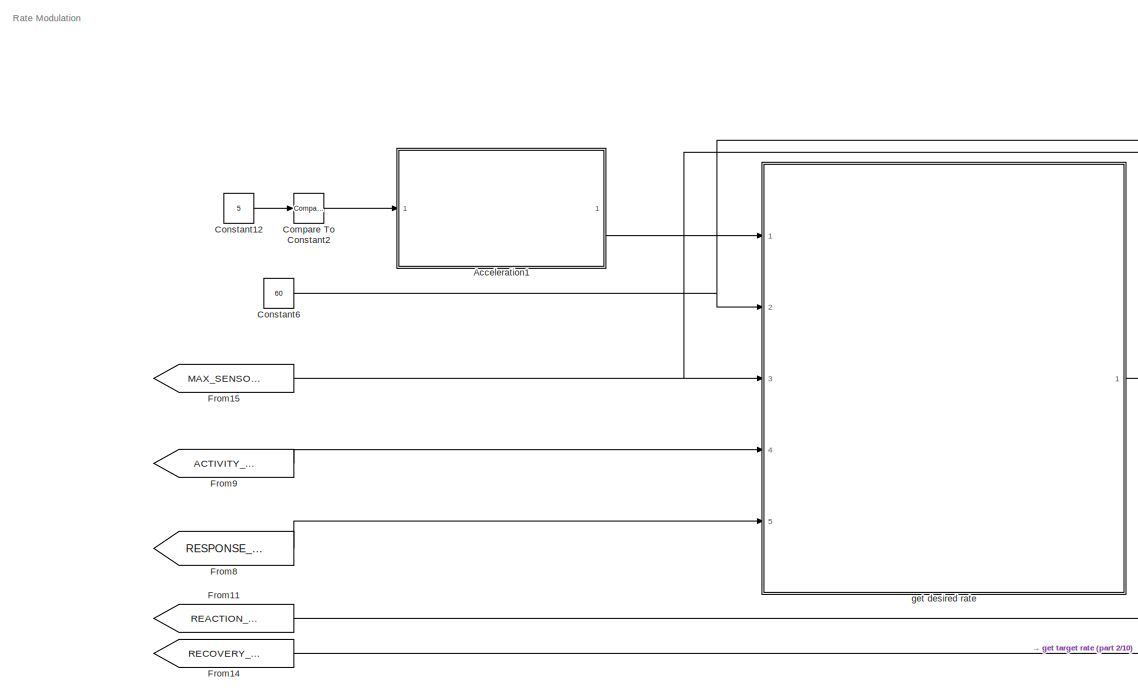
[diagram: root canvas - part 1/10, top center region]
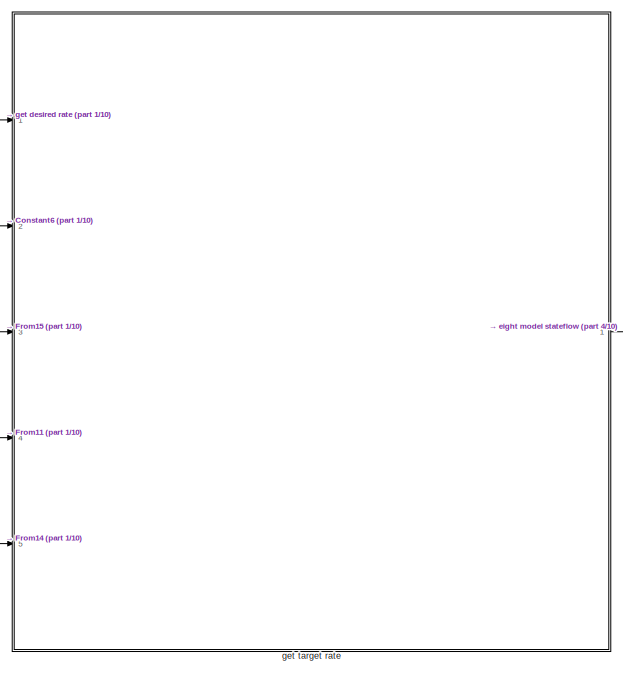
[diagram: root canvas - part 2/10, top center region]
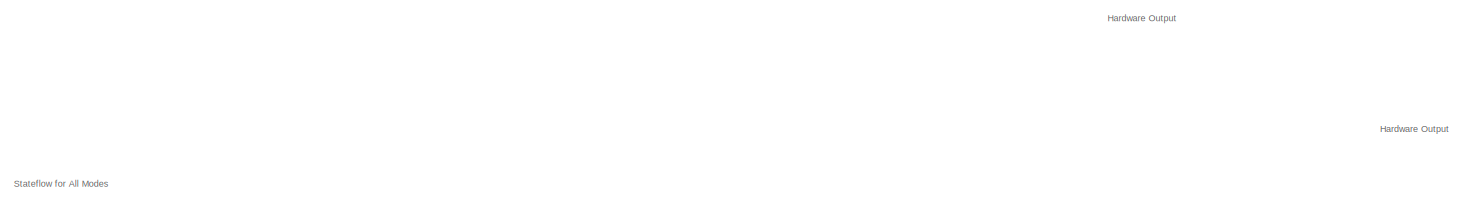
[diagram: root canvas - part 3/10, middle right region]
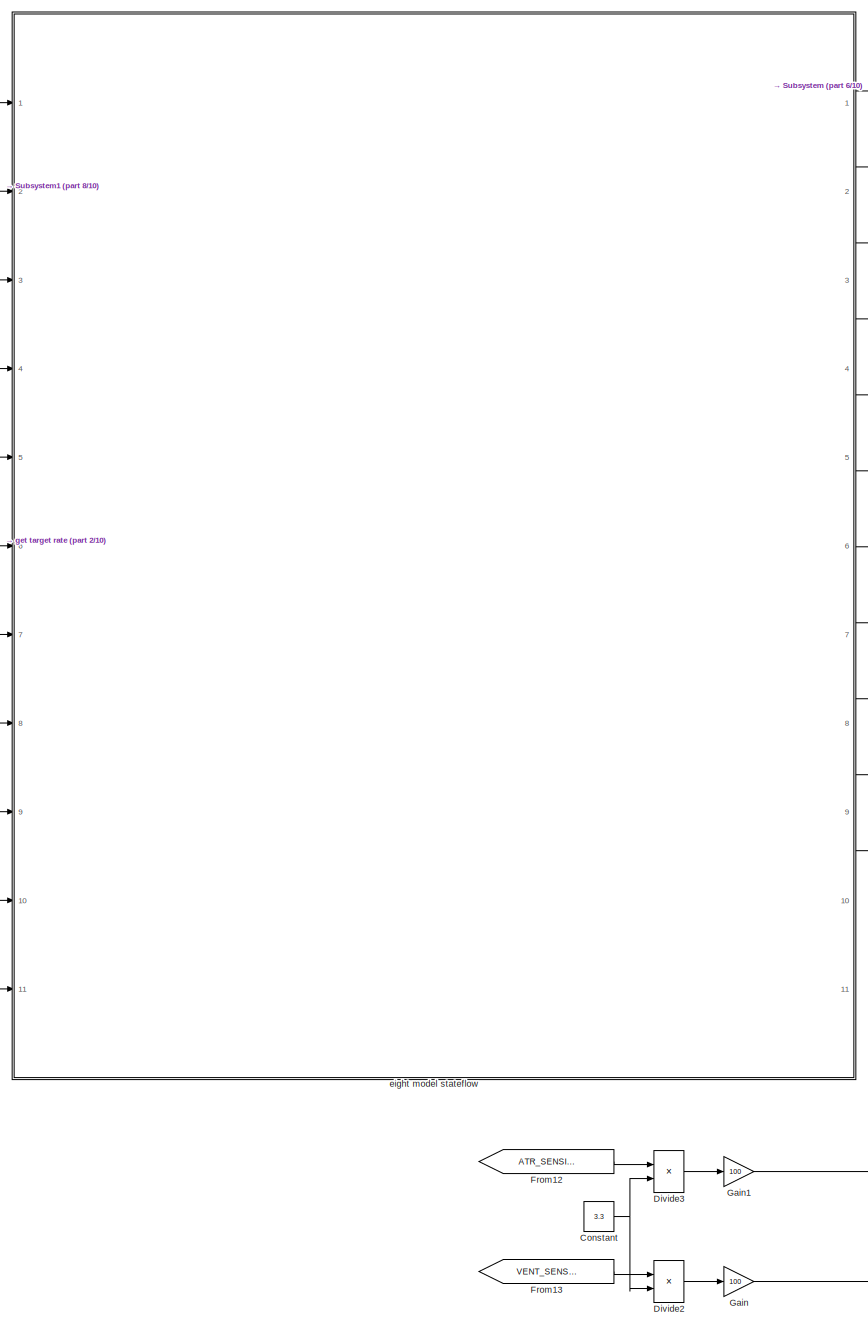
[diagram: root canvas - part 4/10, bottom right region]
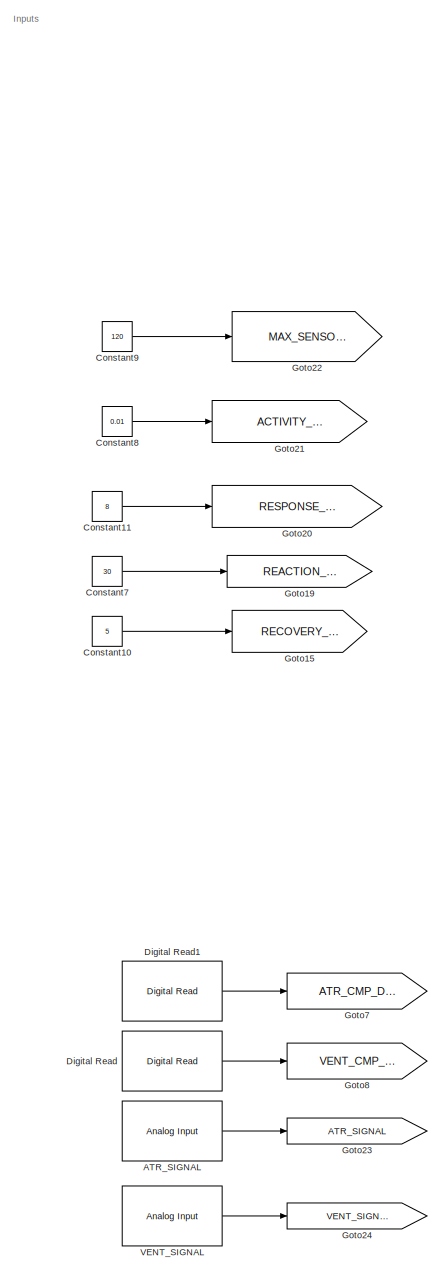
[diagram: root canvas - part 5/10, bottom left region]
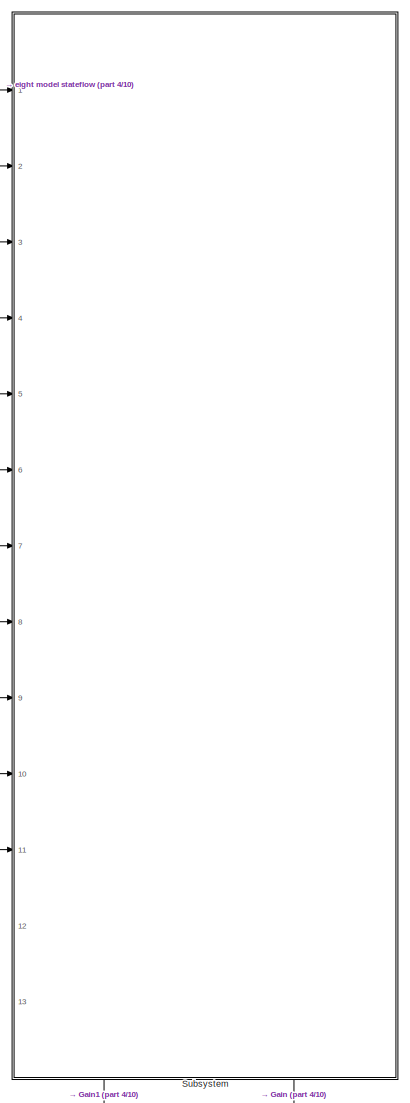
[diagram: root canvas - part 6/10, middle right region]
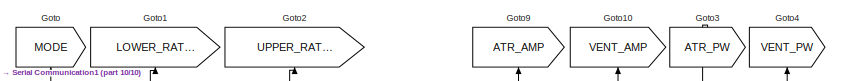
[diagram: root canvas - part 7/10, middle left region]
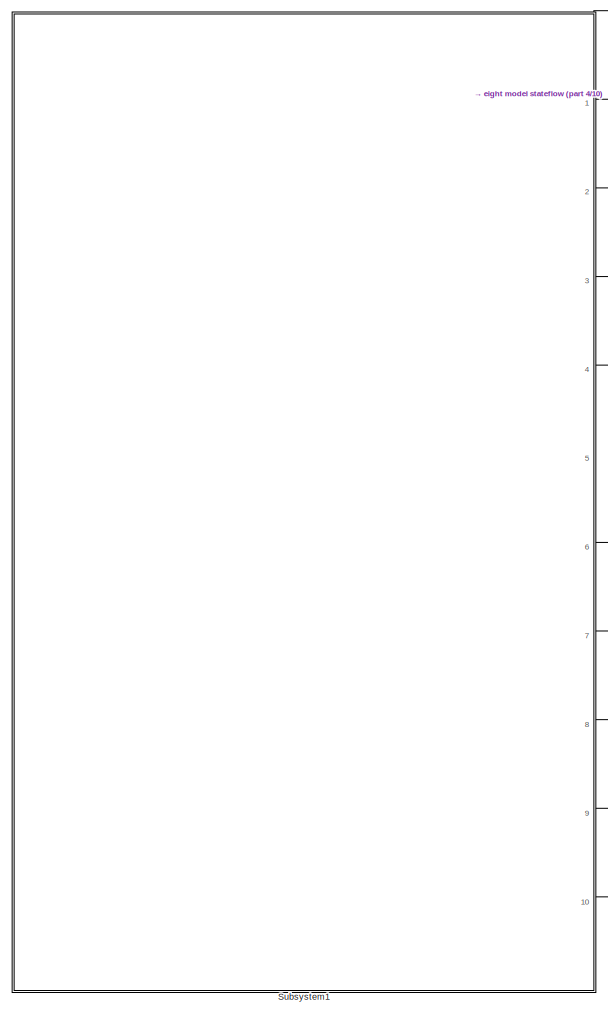
[diagram: root canvas - part 8/10, bottom center region]
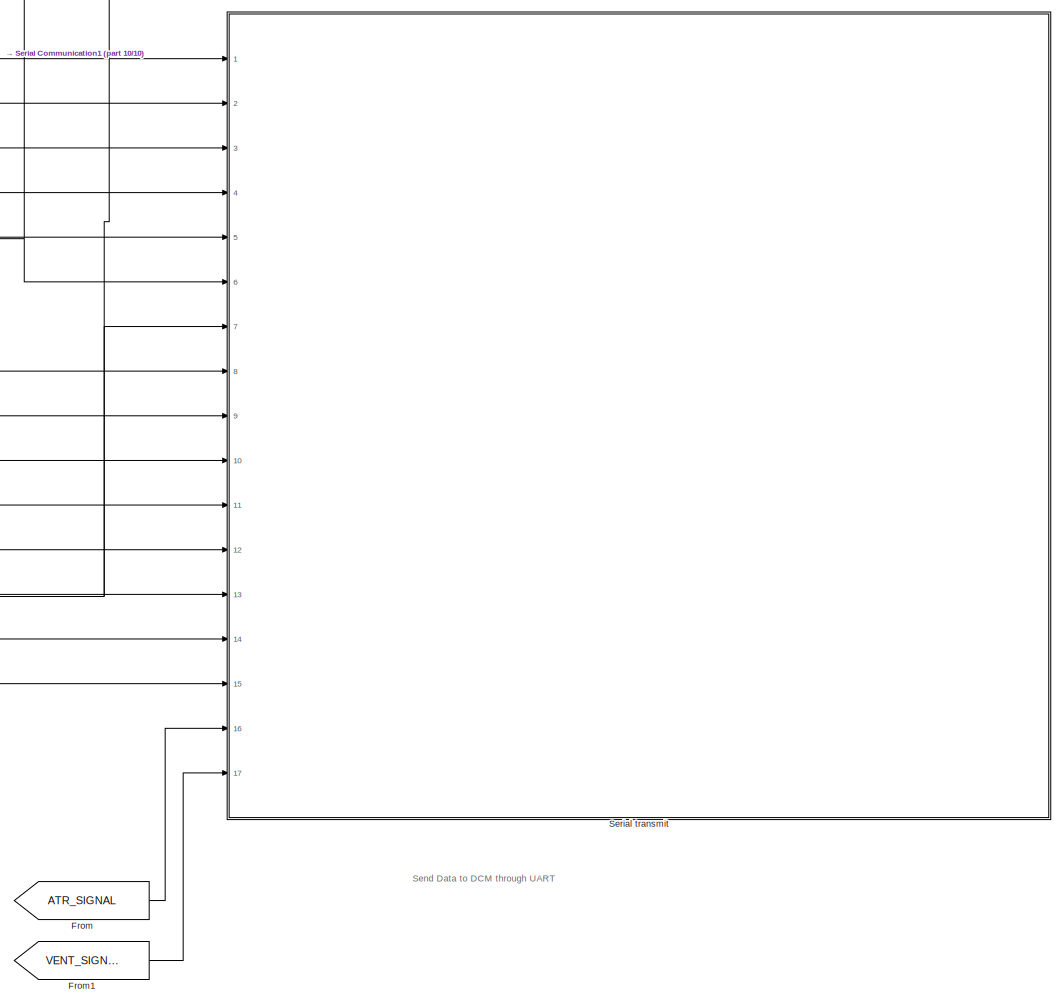
[diagram: root canvas - part 9/10, bottom center region]
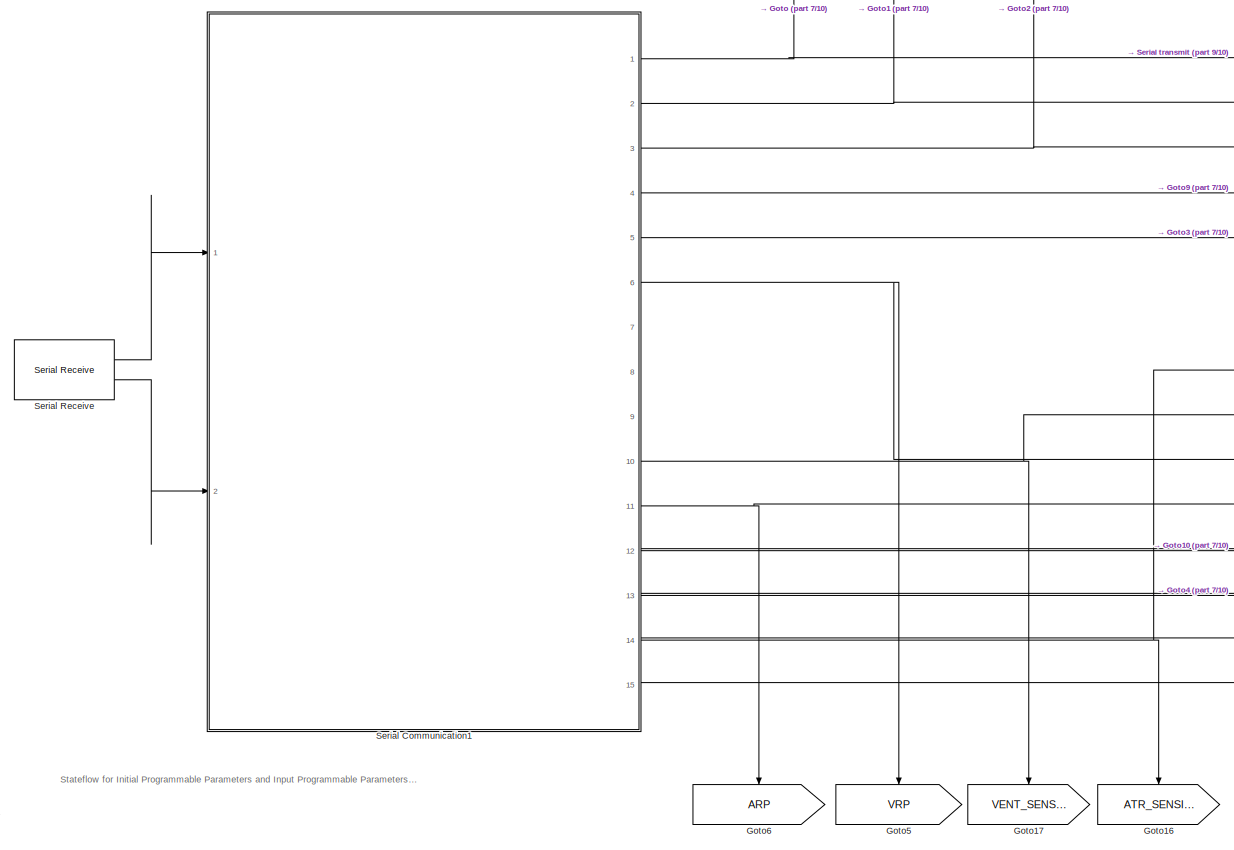
[diagram: root canvas - part 10/10, bottom left region]
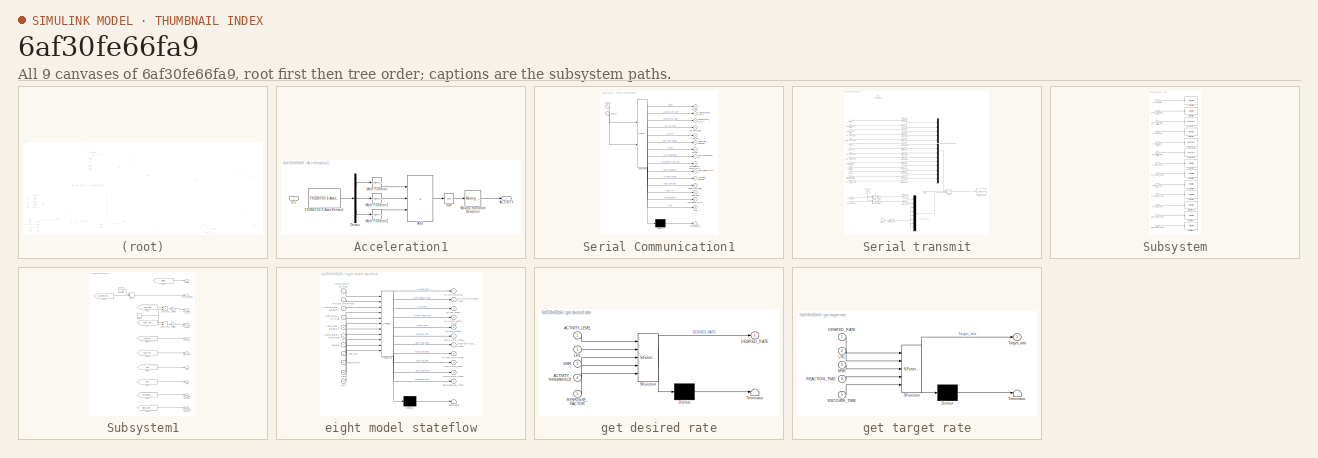
[diagram: thumbnail index - all 9 canvases of the model, root first then tree order]
MODEL slx_6af30fe66fa9
KIND model
CONFIG AbsTol = auto
CONFIG EnableMultiTasking = on
CONFIG FixedStep = 1e-3
CONFIG MaxStep = auto
CONFIG MinStep = auto
CONFIG RelTol = 1e-3
CONFIG SampleTimeConstraint = Unconstrained
CONFIG SolverName = FixedStepAuto
CONFIG StartTime = 0.0
CONFIG StopTime = 10.0
BLOCK [Reference] ATR_SIGNAL  REF=frdmk64flib/Analog Input
  Ports = [0, 1]
  SourceBlock = frdmk64flib/Analog Input
  SourceProductBaseCode = EC_FRDM_K64F
  SourceType = freedomk64f.AnalogInput
BLOCK [SubSystem] Acceleration1
  NameLocation = top
  Ports = [1, 1]
  RequestExecContextInheritance = off
BLOCK [Outport] Acceleration1/ACTIVITY
  SourceOfInitialOutputValue = Input signal
BLOCK [Sum] Acceleration1/Add
  IconShape = rectangular
  Inputs = +++
  Ports = [3, 1]
BLOCK [Demux] Acceleration1/Demux
  Outputs = 3
  Ports = [1, 3]
BLOCK [Reference] Acceleration1/FXOS8700 6-Axes Sensor1  REF=frdmk64flib/FXOS8700 6-Axes Sensor
  Ports = [0, 1]
  SourceBlock = frdmk64flib/FXOS8700 6-Axes Sensor
  SourceProductBaseCode = EC_FRDM_K64F
  SourceType = freedomk64f.fxos8700
BLOCK [Inport] Acceleration1/In1
BLOCK [Math] Acceleration1/Math Function
  Operator = magnitude^2
  OutDataTypeStr = double
  Ports = [1, 1]
  SignedPower = on
BLOCK [Math] Acceleration1/Math Function1
  Operator = magnitude^2
  OutDataTypeStr = double
  Ports = [1, 1]
  SignedPower = on
BLOCK [Math] Acceleration1/Math Function2
  Operator = magnitude^2
  OutDataTypeStr = double
  Ports = [1, 1]
  SignedPower = on
BLOCK [Reference] Acceleration1/Moving Standard Deviation  REF=dspstat3/Moving
Standard
Deviation
  Ports = [1, 1]
  SourceBlock = dspstat3/Moving\nStandard\nDeviation
  SourceProductBaseCode = DS
  SourceType = dsp.simulink.MovingStandardDeviation
BLOCK [Sqrt] Acceleration1/Sqrt
BLOCK [Reference] Compare To Constant2  REF=simulink/Logic and Bit
Operations/Compare
To Constant
  Ports = [1, 1]
  SourceBlock = simulink/Logic and Bit\nOperations/Compare\nTo Constant
  SourceProductBaseCode = SL
  SourceType = Compare To Constant
BLOCK [Constant] Constant
  Value = 3.3
BLOCK [Constant] Constant10
  Value = 5
BLOCK [Constant] Constant11
  Value = 8
BLOCK [Constant] Constant12
  Value = 5
BLOCK [Constant] Constant6
  Value = 60
BLOCK [Constant] Constant7
  Value = 30
BLOCK [Constant] Constant8
  Value = 0.01
BLOCK [Constant] Constant9
  Value = 120
BLOCK [Reference] Digital Read  REF=frdmk64flib/Digital Read
  Ports = [0, 1]
  SourceBlock = frdmk64flib/Digital Read
  SourceProductBaseCode = EC_FRDM_K64F
  SourceType = freedomk64f.DigitalRead
BLOCK [Reference] Digital Read1  REF=frdmk64flib/Digital Read
  Ports = [0, 1]
  SourceBlock = frdmk64flib/Digital Read
  SourceProductBaseCode = EC_FRDM_K64F
  SourceType = freedomk64f.DigitalRead
BLOCK [Product] Divide2
  Inputs = */
  Ports = [2, 1]
BLOCK [Product] Divide3
  Inputs = */
  Ports = [2, 1]
BLOCK [From] From
  GotoTag = ATR_SIGNAL
  TagVisibility = global
BLOCK [From] From1
  GotoTag = VENT_SIGNAL
  TagVisibility = global
BLOCK [From] From11
  GotoTag = REACTION_TIME
  TagVisibility = global
BLOCK [From] From12
  GotoTag = ATR_SENSITIVITY
  TagVisibility = global
BLOCK [From] From13
  GotoTag = VENT_SENSITIVITY
  TagVisibility = global
BLOCK [From] From14
  GotoTag = RECOVERY_TIME
  TagVisibility = global
BLOCK [From] From15
  GotoTag = MAX_SENSOR_RATE
  TagVisibility = global
BLOCK [From] From8
  GotoTag = RESPONSE_FACTOR
  TagVisibility = global
BLOCK [From] From9
  GotoTag = ACTIVITY_THRESHOLD
  TagVisibility = global
BLOCK [Gain] Gain
  Gain = 100
BLOCK [Gain] Gain1
  Gain = 100
BLOCK [Goto] Goto
  GotoTag = MODE
  IconDisplay = Signal name
  NameLocation = right
  TagVisibility = global
BLOCK [Goto] Goto1
  GotoTag = LOWER_RATE_LIMIT
  IconDisplay = Signal name
  NameLocation = right
  TagVisibility = global
BLOCK [Goto] Goto10
  GotoTag = VENT_AMP
  IconDisplay = Signal name
  NameLocation = right
  TagVisibility = global
BLOCK [Goto] Goto15
  GotoTag = RECOVERY_TIME
  IconDisplay = Signal name
  TagVisibility = global
BLOCK [Goto] Goto16
  GotoTag = ATR_SENSITIVITY
  IconDisplay = Signal name
  NameLocation = left
  TagVisibility = global
BLOCK [Goto] Goto17
  GotoTag = VENT_SENSITIVITY
  IconDisplay = Signal name
  NameLocation = left
  TagVisibility = global
BLOCK [Goto] Goto19
  GotoTag = REACTION_TIME
  IconDisplay = Signal name
  TagVisibility = global
BLOCK [Goto] Goto2
  GotoTag = UPPER_RATE_LIMIT
  IconDisplay = Signal name
  NameLocation = right
  TagVisibility = global
BLOCK [Goto] Goto20
  GotoTag = RESPONSE_FACTOR
  IconDisplay = Signal name
  TagVisibility = global
BLOCK [Goto] Goto21
  GotoTag = ACTIVITY_THRESHOLD
  IconDisplay = Signal name
  TagVisibility = global
BLOCK [Goto] Goto22
  GotoTag = MAX_SENSOR_RATE
  IconDisplay = Signal name
  TagVisibility = global
BLOCK [Goto] Goto23
  GotoTag = ATR_SIGNAL
  TagVisibility = global
BLOCK [Goto] Goto24
  GotoTag = VENT_SIGNAL
  TagVisibility = global
BLOCK [Goto] Goto3
  GotoTag = ATR_PW
  IconDisplay = Signal name
  NameLocation = right
  TagVisibility = global
BLOCK [Goto] Goto4
  GotoTag = VENT_PW
  IconDisplay = Signal name
  NameLocation = right
  TagVisibility = global
BLOCK [Goto] Goto5
  GotoTag = VRP
  IconDisplay = Signal name
  NameLocation = left
  TagVisibility = global
BLOCK [Goto] Goto6
  GotoTag = ARP
  IconDisplay = Signal name
  NameLocation = left
  TagVisibility = global
BLOCK [Goto] Goto7
  GotoTag = ATR_CMP_DETECT
  IconDisplay = Signal name
  TagVisibility = global
BLOCK [Goto] Goto8
  GotoTag = VENT_CMP_DETECT
  IconDisplay = Signal name
  TagVisibility = global
BLOCK [Goto] Goto9
  GotoTag = ATR_AMP
  IconDisplay = Signal name
  NameLocation = right
  TagVisibility = global
BLOCK [SubSystem] Serial Communication1
  ErrorFcn = Stateflow.Translate.translate
  PermitHierarchicalResolution = ExplicitOnly
  PortSchema = {"entries":[{"content":{"sides":[{"content":{"connectorIds":["In1","In2"]},"type":"ConnectorPlacement.EquallySpacedRectSide","uuid":"901574a5-7e09-4852-8827-baac8e876273"},{"content":{"connectorIds":["Out1","Out2","Out3","Out4","Out12","Out5","Out13","Out14","Out10","Out6","Out11","Out7","Out9","Out8","Out15"],"side":"RIGHT"},"type":"ConnectorPlacement.EquallySpacedRectSide","uuid":"89d36c37-e833-...<+350ch>
  Ports = [2, 15]
  RequestExecContextInheritance = off
  SFBlockType = Chart
  TreatAsAtomicUnit = on
BLOCK [Demux] Serial Communication1/ Demux 
  Outputs = 1
  Ports = [1, 1]
BLOCK [S-Function] Serial Communication1/ SFunction 
  EnableBusSupport = on
  FunctionName = sf_sfun
  PortCounts = [2 16]
  Ports = [2, 16]
  SFcnIsStateOwnerBlock = off
  SFunctionDeploymentMode = off
  Tag = Stateflow S-Function 1
BLOCK [Terminator] Serial Communication1/ Terminator 
BLOCK [Outport] Serial Communication1/ATR_AMP_REG
  Port = 4
BLOCK [Outport] Serial Communication1/ATR_PW
  Port = 5
BLOCK [Outport] Serial Communication1/ATR_REF_PERIOD
  Port = 11
BLOCK [Outport] Serial Communication1/ATR_SENSITIVITY
  Port = 14
BLOCK [Outport] Serial Communication1/HYSTERESIS_RATE_LIMIT
  Port = 9
BLOCK [Outport] Serial Communication1/LOWER_RATE_LIMIT
  Port = 2
BLOCK [Outport] Serial Communication1/MODE
BLOCK [Outport] Serial Communication1/PVARP
  Port = 7
BLOCK [Outport] Serial Communication1/RATE_SMOOTHING
  Port = 8
BLOCK [Outport] Serial Communication1/Type
  Port = 15
BLOCK [Outport] Serial Communication1/UPPER_RATE_LIMIT
  Port = 3
BLOCK [Outport] Serial Communication1/VENT_AMP_REG
  Port = 12
BLOCK [Outport] Serial Communication1/VENT_PW
  Port = 13
BLOCK [Outport] Serial Communication1/VENT_REF_PERIOD
  Port = 6
BLOCK [Outport] Serial Communication1/VENT_SENSITIVITY
  Port = 10
BLOCK [Inport] Serial Communication1/rxdata
BLOCK [Inport] Serial Communication1/status
  Port = 2
BLOCK [Reference] Serial Receive  REF=frdmk64flib/Serial Receive
  Ports = [0, 2]
  SourceBlock = frdmk64flib/Serial Receive
  SourceProductBaseCode = EC_FRDM_K64F
  SourceType = freedomk64f.SCIRead
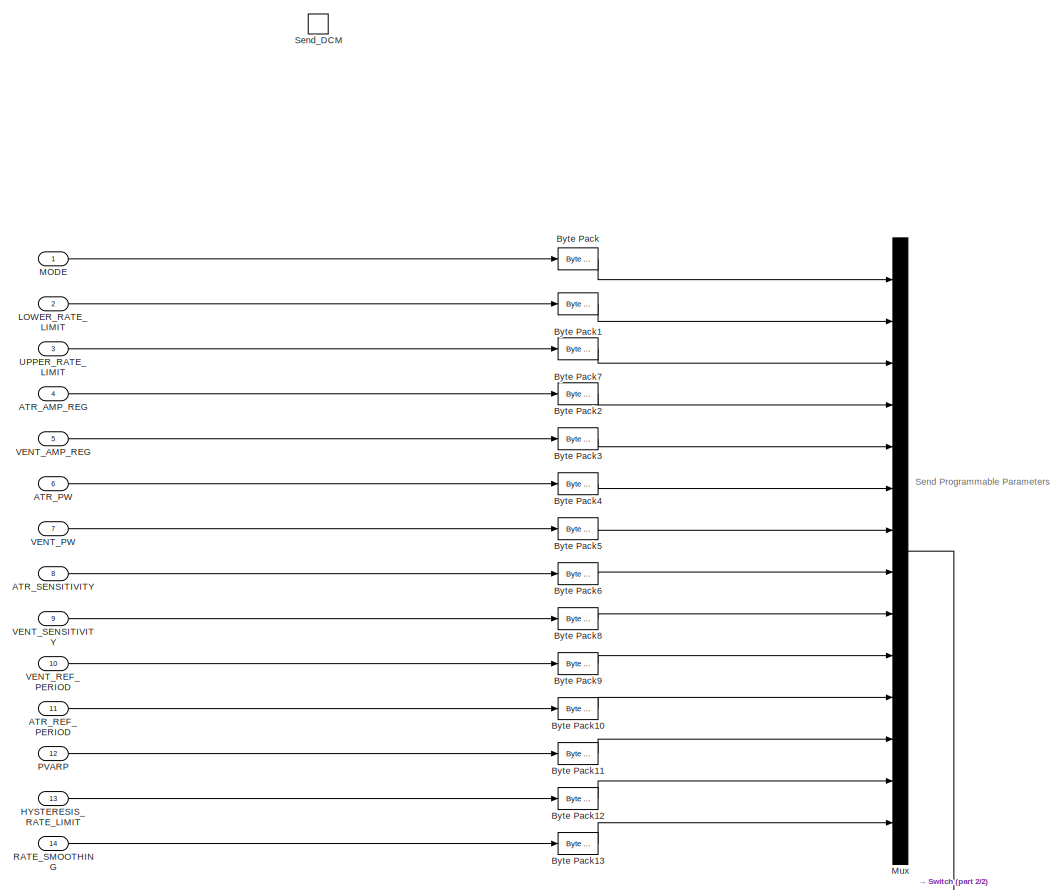
[diagram: Serial transmit - part 1/2, full width, middle band]
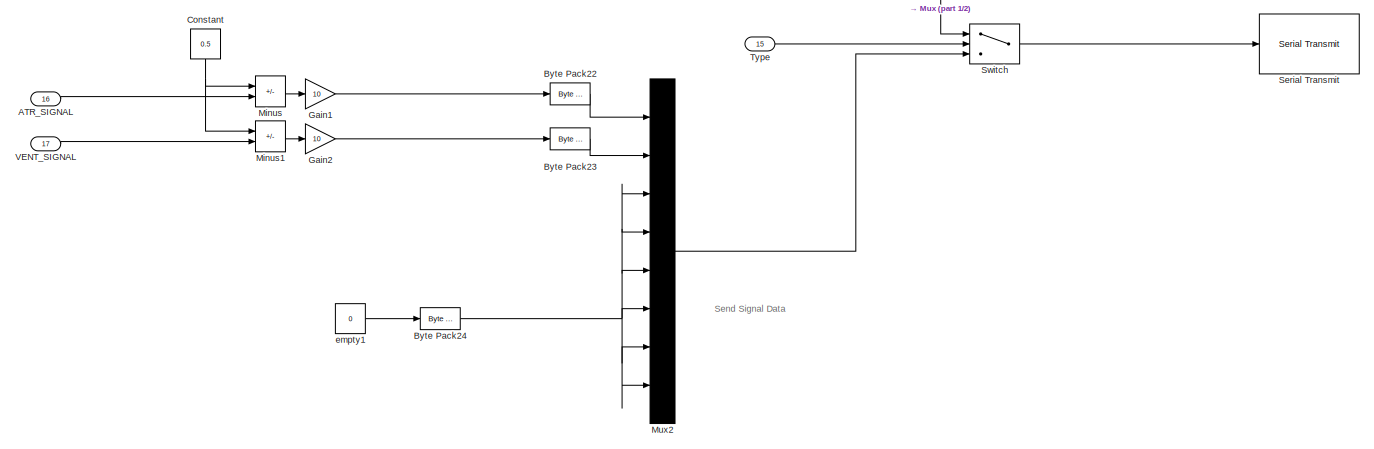
[diagram: Serial transmit - part 2/2, full width, bottom band]
BLOCK [SubSystem] Serial transmit
  Ports = [17, 0, 0, 1]
  RequestExecContextInheritance = off
  TreatAsAtomicUnit = on
BLOCK [Inport] Serial transmit/ATR_AMP_REG
  Port = 4
BLOCK [Inport] Serial transmit/ATR_PW
  Port = 6
BLOCK [Inport] Serial transmit/ATR_REF_PERIOD
  Port = 11
BLOCK [Inport] Serial transmit/ATR_SENSITIVITY
  Port = 8
BLOCK [Inport] Serial transmit/ATR_SIGNAL
  Port = 16
BLOCK [Reference] Serial transmit/Byte Pack  REF=etargetslib/Byte Pack
  Ports = [1, 1]
  SourceBlock = etargetslib/Byte Pack
  SourceProductBaseCode = ME
  SourceType = Byte pack
BLOCK [Reference] Serial transmit/Byte Pack1  REF=etargetslib/Byte Pack
  Ports = [1, 1]
  SourceBlock = etargetslib/Byte Pack
  SourceProductBaseCode = ME
  SourceType = Byte pack
BLOCK [Reference] Serial transmit/Byte Pack10  REF=etargetslib/Byte Pack
  Ports = [1, 1]
  SourceBlock = etargetslib/Byte Pack
  SourceProductBaseCode = ME
  SourceType = Byte pack
BLOCK [Reference] Serial transmit/Byte Pack11  REF=etargetslib/Byte Pack
  Ports = [1, 1]
  SourceBlock = etargetslib/Byte Pack
  SourceProductBaseCode = ME
  SourceType = Byte pack
BLOCK [Reference] Serial transmit/Byte Pack12  REF=etargetslib/Byte Pack
  Ports = [1, 1]
  SourceBlock = etargetslib/Byte Pack
  SourceProductBaseCode = ME
  SourceType = Byte pack
BLOCK [Reference] Serial transmit/Byte Pack13  REF=etargetslib/Byte Pack
  Ports = [1, 1]
  SourceBlock = etargetslib/Byte Pack
  SourceProductBaseCode = ME
  SourceType = Byte pack
BLOCK [Reference] Serial transmit/Byte Pack2  REF=etargetslib/Byte Pack
  Ports = [1, 1]
  SourceBlock = etargetslib/Byte Pack
  SourceProductBaseCode = ME
  SourceType = Byte pack
BLOCK [Reference] Serial transmit/Byte Pack22  REF=etargetslib/Byte Pack
  Ports = [1, 1]
  SourceBlock = etargetslib/Byte Pack
  SourceProductBaseCode = ME
  SourceType = Byte pack
BLOCK [Reference] Serial transmit/Byte Pack23  REF=etargetslib/Byte Pack
  Ports = [1, 1]
  SourceBlock = etargetslib/Byte Pack
  SourceProductBaseCode = ME
  SourceType = Byte pack
BLOCK [Reference] Serial transmit/Byte Pack24  REF=etargetslib/Byte Pack
  Ports = [1, 1]
  SourceBlock = etargetslib/Byte Pack
  SourceProductBaseCode = ME
  SourceType = Byte pack
BLOCK [Reference] Serial transmit/Byte Pack3  REF=etargetslib/Byte Pack
  Ports = [1, 1]
  SourceBlock = etargetslib/Byte Pack
  SourceProductBaseCode = ME
  SourceType = Byte pack
BLOCK [Reference] Serial transmit/Byte Pack4  REF=etargetslib/Byte Pack
  Ports = [1, 1]
  SourceBlock = etargetslib/Byte Pack
  SourceProductBaseCode = ME
  SourceType = Byte pack
BLOCK [Reference] Serial transmit/Byte Pack5  REF=etargetslib/Byte Pack
  Ports = [1, 1]
  SourceBlock = etargetslib/Byte Pack
  SourceProductBaseCode = ME
  SourceType = Byte pack
BLOCK [Reference] Serial transmit/Byte Pack6  REF=etargetslib/Byte Pack
  Ports = [1, 1]
  SourceBlock = etargetslib/Byte Pack
  SourceProductBaseCode = ME
  SourceType = Byte pack
BLOCK [Reference] Serial transmit/Byte Pack7  REF=etargetslib/Byte Pack
  Ports = [1, 1]
  SourceBlock = etargetslib/Byte Pack
  SourceProductBaseCode = ME
  SourceType = Byte pack
BLOCK [Reference] Serial transmit/Byte Pack8  REF=etargetslib/Byte Pack
  Ports = [1, 1]
  SourceBlock = etargetslib/Byte Pack
  SourceProductBaseCode = ME
  SourceType = Byte pack
BLOCK [Reference] Serial transmit/Byte Pack9  REF=etargetslib/Byte Pack
  Ports = [1, 1]
  SourceBlock = etargetslib/Byte Pack
  SourceProductBaseCode = ME
  SourceType = Byte pack
BLOCK [Constant] Serial transmit/Constant
  NameLocation = left
  Value = 0.5
BLOCK [Gain] Serial transmit/Gain1
  Gain = 10
BLOCK [Gain] Serial transmit/Gain2
  Gain = 10
BLOCK [Inport] Serial transmit/HYSTERESIS_RATE_LIMIT
  Port = 13
BLOCK [Inport] Serial transmit/LOWER_RATE_LIMIT
  Port = 2
BLOCK [Inport] Serial transmit/MODE
BLOCK [Sum] Serial transmit/Minus
  IconShape = rectangular
  Inputs = +-
  Ports = [2, 1]
BLOCK [Sum] Serial transmit/Minus1
  IconShape = rectangular
  Inputs = +-
  Ports = [2, 1]
BLOCK [Mux] Serial transmit/Mux
  DisplayOption = bar
  Inputs = 14
  Ports = [14, 1]
BLOCK [Mux] Serial transmit/Mux2
  DisplayOption = bar
  Inputs = 8
  Ports = [8, 1]
BLOCK [Inport] Serial transmit/PVARP
  Port = 12
BLOCK [Inport] Serial transmit/RATE_SMOOTHING
  Port = 14
BLOCK [TriggerPort] Serial transmit/Send_DCM
  FunctionName = Send_DCM
  IsSimulinkFunction = on
  Ports = []
  StatesWhenEnabling = held
  TriggerType = function-call
  VariantControl = Variant
BLOCK [Reference] Serial transmit/Serial Transmit  REF=frdmk64flib/Serial Transmit
  Ports = [1]
  SourceBlock = frdmk64flib/Serial Transmit
  SourceProductBaseCode = EC_FRDM_K64F
  SourceType = freedomk64f.SCIWrite
BLOCK [Switch] Serial transmit/Switch
  Criteria = u2 > Threshold
  InputSameDT = off
  SaturateOnIntegerOverflow = off
BLOCK [Inport] Serial transmit/Type
  Port = 15
BLOCK [Inport] Serial transmit/UPPER_RATE_LIMIT
  Port = 3
BLOCK [Inport] Serial transmit/VENT_AMP_REG
  Port = 5
BLOCK [Inport] Serial transmit/VENT_PW
  Port = 7
BLOCK [Inport] Serial transmit/VENT_REF_PERIOD
  Port = 10
BLOCK [Inport] Serial transmit/VENT_SENSITIVITY
  Port = 9
BLOCK [Inport] Serial transmit/VENT_SIGNAL
  Port = 17
BLOCK [Constant] Serial transmit/empty1
  Value = 0
BLOCK [SubSystem] Subsystem
  PortSchema = {"entries":[{"content":{"sides":[{"content":{"connectorIds":["In1","In2","In3","In4","In5","In6","In7","In8","In9","In10","In11"]},"type":"ConnectorPlacement.EquallySpacedRectSide","uuid":"cf431d19-a261-4061-b975-82ab8e4554ba"},{"content":{"connectorIds":[],"side":"RIGHT"},"type":"ConnectorPlacement.EquallySpacedRectSide","uuid":"d9d96e0a-6018-4f8e-a98f-6eed3a91414e"},{"content":{"connectorIds":[]...<+453ch>
  Ports = [13]
  RequestExecContextInheritance = off
BLOCK [Inport] Subsystem/ATR_CMP_REF_PWM
  Port = 12
BLOCK [Inport] Subsystem/ATR_GND_CTRL
  Port = 9
BLOCK [Inport] Subsystem/ATR_PACE_CTRL
  Port = 6
BLOCK [Reference] Subsystem/Digital Write  REF=frdmk64flib/Digital Write
  Ports = [1]
  SourceBlock = frdmk64flib/Digital Write
  SourceProductBaseCode = EC_FRDM_K64F
  SourceType = freedomk64f.DigitalWrite
BLOCK [Reference] Subsystem/Digital Write1  REF=frdmk64flib/Digital Write
  Ports = [1]
  SourceBlock = frdmk64flib/Digital Write
  SourceProductBaseCode = EC_FRDM_K64F
  SourceType = freedomk64f.DigitalWrite
BLOCK [Reference] Subsystem/Digital Write10  REF=frdmk64flib/Digital Write
  Ports = [1]
  SourceBlock = frdmk64flib/Digital Write
  SourceProductBaseCode = EC_FRDM_K64F
  SourceType = freedomk64f.DigitalWrite
BLOCK [Reference] Subsystem/Digital Write11  REF=frdmk64flib/Digital Write
  Ports = [1]
  SourceBlock = frdmk64flib/Digital Write
  SourceProductBaseCode = EC_FRDM_K64F
  SourceType = freedomk64f.DigitalWrite
BLOCK [Reference] Subsystem/Digital Write12  REF=frdmk64flib/Digital Write
  Ports = [1]
  SourceBlock = frdmk64flib/Digital Write
  SourceProductBaseCode = EC_FRDM_K64F
  SourceType = freedomk64f.DigitalWrite
BLOCK [Reference] Subsystem/Digital Write2  REF=frdmk64flib/Digital Write
  Ports = [1]
  SourceBlock = frdmk64flib/Digital Write
  SourceProductBaseCode = EC_FRDM_K64F
  SourceType = freedomk64f.DigitalWrite
BLOCK [Reference] Subsystem/Digital Write4  REF=frdmk64flib/Digital Write
  Ports = [1]
  SourceBlock = frdmk64flib/Digital Write
  SourceProductBaseCode = EC_FRDM_K64F
  SourceType = freedomk64f.DigitalWrite
BLOCK [Reference] Subsystem/Digital Write7  REF=frdmk64flib/Digital Write
  Ports = [1]
  SourceBlock = frdmk64flib/Digital Write
  SourceProductBaseCode = EC_FRDM_K64F
  SourceType = freedomk64f.DigitalWrite
BLOCK [Reference] Subsystem/Digital Write8  REF=frdmk64flib/Digital Write
  Ports = [1]
  SourceBlock = frdmk64flib/Digital Write
  SourceProductBaseCode = EC_FRDM_K64F
  SourceType = freedomk64f.DigitalWrite
BLOCK [Reference] Subsystem/Digital Write9  REF=frdmk64flib/Digital Write
  Ports = [1]
  SourceBlock = frdmk64flib/Digital Write
  SourceProductBaseCode = EC_FRDM_K64F
  SourceType = freedomk64f.DigitalWrite
BLOCK [Inport] Subsystem/FRONTEND_CTRL
  Port = 11
BLOCK [Inport] Subsystem/IS_CHARGING
BLOCK [Inport] Subsystem/PACE_CHARGE_CTRL
  Port = 2
BLOCK [Inport] Subsystem/PACE_GND_CTRL
  Port = 8
BLOCK [Inport] Subsystem/PACING_REF_PWM
  Port = 4
BLOCK [Reference] Subsystem/PWM Output  REF=frdmk64flib/PWM Output
  Ports = [1]
  SourceBlock = frdmk64flib/PWM Output
  SourceProductBaseCode = EC_FRDM_K64F
  SourceType = freedomk64f.PWMOutput
BLOCK [Reference] Subsystem/PWM Output1  REF=frdmk64flib/PWM Output
  Ports = [1]
  SourceBlock = frdmk64flib/PWM Output
  SourceProductBaseCode = EC_FRDM_K64F
  SourceType = freedomk64f.PWMOutput
BLOCK [Reference] Subsystem/PWM Output2  REF=frdmk64flib/PWM Output
  Ports = [1]
  SourceBlock = frdmk64flib/PWM Output
  SourceProductBaseCode = EC_FRDM_K64F
  SourceType = freedomk64f.PWMOutput
BLOCK [Inport] Subsystem/VENT_CMP_REF_PWM
  Port = 13
BLOCK [Inport] Subsystem/VENT_GND_CTRL
  Port = 10
BLOCK [Inport] Subsystem/VENT_PACE_CTRL
  Port = 7
BLOCK [Inport] Subsystem/Z_ATR_CTRL
  Port = 3
BLOCK [Inport] Subsystem/Z_VENT_CTRL
  Port = 5
BLOCK [SubSystem] Subsystem1
  Ports = [0, 10]
  RequestExecContextInheritance = off
BLOCK [Outport] Subsystem1/ARP
  Port = 7
BLOCK [Outport] Subsystem1/ATR_CMP_DETECT
  Port = 9
BLOCK [Product] Subsystem1/ATR_CYCLE
  Inputs = */
  Ports = [2, 1]
BLOCK [Outport] Subsystem1/ATR_DUTY_CYCLE
  Port = 3
BLOCK [Outport] Subsystem1/ATR_PW
  Port = 5
BLOCK [Product] Subsystem1/Divide1
  Inputs = */
  Ports = [2, 1]
BLOCK [From] Subsystem1/From0
  GotoTag = MODE
  TagVisibility = global
BLOCK [From] Subsystem1/From1
  GotoTag = LOWER_RATE_LIMIT
  TagVisibility = global
BLOCK [From] Subsystem1/From2
  GotoTag = ATR_AMP
  TagVisibility = global
BLOCK [From] Subsystem1/From3
  GotoTag = VENT_AMP
  TagVisibility = global
BLOCK [From] Subsystem1/From4
  GotoTag = ATR_PW
  TagVisibility = global
BLOCK [From] Subsystem1/From5
  GotoTag = VENT_PW
  TagVisibility = global
BLOCK [From] Subsystem1/From6
  GotoTag = ARP
  TagVisibility = global
BLOCK [From] Subsystem1/From7
  GotoTag = VRP
  TagVisibility = global
BLOCK [From] Subsystem1/From8
  GotoTag = ATR_CMP_DETECT
  TagVisibility = global
BLOCK [From] Subsystem1/From9
  GotoTag = VENT_CMP_DETECT
  TagVisibility = global
BLOCK [Outport] Subsystem1/MODE
BLOCK [Gain] Subsystem1/Multiply
  Gain = 100
BLOCK [Gain] Subsystem1/Multiply1
  Gain = 100
BLOCK [Outport] Subsystem1/PULSE_PERIOD
  Port = 2
BLOCK [Outport] Subsystem1/VENT_CMP_DETECT
  Port = 10
BLOCK [Product] Subsystem1/VENT_CYCLE
  Inputs = */
  Ports = [2, 1]
BLOCK [Outport] Subsystem1/VENT_DUTY_CYCLE
  Port = 4
BLOCK [Outport] Subsystem1/VENT_PW
  Port = 6
BLOCK [Outport] Subsystem1/VRP
  Port = 8
BLOCK [Constant] Subsystem1/Voltage
  Value = 5
BLOCK [Constant] Subsystem1/msec//min
  LockScale = on
  OutDataTypeStr = double
  Value = 60000
BLOCK [Reference] VENT_SIGNAL  REF=frdmk64flib/Analog Input
  Ports = [0, 1]
  SourceBlock = frdmk64flib/Analog Input
  SourceProductBaseCode = EC_FRDM_K64F
  SourceType = freedomk64f.AnalogInput
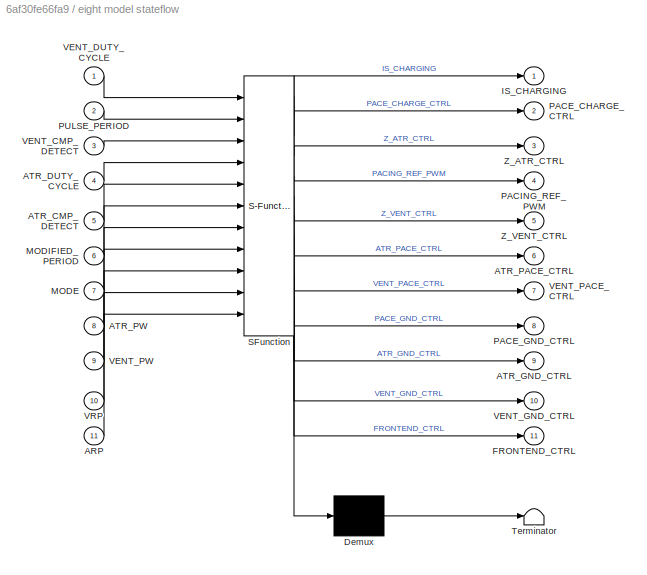
BLOCK [SubSystem] eight model stateflow
  ErrorFcn = Stateflow.Translate.translate
  PermitHierarchicalResolution = ExplicitOnly
  PortSchema = {"entries":[{"content":{"sides":[{"content":{"connectorIds":["In6","In7","In2","In4","In1","In8","In9","In11","In10","In5","In3"]},"type":"ConnectorPlacement.EquallySpacedRectSide","uuid":"7bd189cb-d286-447b-b347-38d7b12e59ee"},{"content":{"connectorIds":["Out1","Out2","Out3","Out4","Out5","Out6","Out7","Out8","Out9","Out10","Out11"],"side":"RIGHT"},"type":"ConnectorPlacement.EquallySpacedRectSide...<+374ch>
  Ports = [11, 11]
  RequestExecContextInheritance = off
  SFBlockType = Chart
  TreatAsAtomicUnit = on
BLOCK [Demux] eight model stateflow/ Demux 
  Outputs = 1
  Ports = [1, 1]
BLOCK [S-Function] eight model stateflow/ SFunction 
  EnableBusSupport = on
  FunctionName = sf_sfun
  PortCounts = [11 12]
  Ports = [11, 12]
  SFcnIsStateOwnerBlock = off
  SFunctionDeploymentMode = off
  Tag = Stateflow S-Function 3
BLOCK [Terminator] eight model stateflow/ Terminator 
BLOCK [Inport] eight model stateflow/ARP
  Port = 11
BLOCK [Inport] eight model stateflow/ATR_CMP_DETECT
  Port = 5
BLOCK [Inport] eight model stateflow/ATR_DUTY_CYCLE
  Port = 4
BLOCK [Outport] eight model stateflow/ATR_GND_CTRL
  Port = 9
BLOCK [Outport] eight model stateflow/ATR_PACE_CTRL
  Port = 6
BLOCK [Inport] eight model stateflow/ATR_PW
  Port = 8
BLOCK [Outport] eight model stateflow/FRONTEND_CTRL
  Port = 11
BLOCK [Outport] eight model stateflow/IS_CHARGING
BLOCK [Inport] eight model stateflow/MODE
  Port = 7
BLOCK [Inport] eight model stateflow/MODIFIED_PERIOD
  Port = 6
BLOCK [Outport] eight model stateflow/PACE_CHARGE_CTRL
  Port = 2
BLOCK [Outport] eight model stateflow/PACE_GND_CTRL
  Port = 8
BLOCK [Outport] eight model stateflow/PACING_REF_PWM
  Port = 4
BLOCK [Inport] eight model stateflow/PULSE_PERIOD
  Port = 2
BLOCK [Inport] eight model stateflow/VENT_CMP_DETECT
  Port = 3
BLOCK [Inport] eight model stateflow/VENT_DUTY_CYCLE
BLOCK [Outport] eight model stateflow/VENT_GND_CTRL
  Port = 10
BLOCK [Outport] eight model stateflow/VENT_PACE_CTRL
  Port = 7
BLOCK [Inport] eight model stateflow/VENT_PW
  Port = 9
BLOCK [Inport] eight model stateflow/VRP
  Port = 10
BLOCK [Outport] eight model stateflow/Z_ATR_CTRL
  Port = 3
BLOCK [Outport] eight model stateflow/Z_VENT_CTRL
  Port = 5
BLOCK [SubSystem] get desired rate
  ErrorFcn = Stateflow.Translate.translate
  PermitHierarchicalResolution = ExplicitOnly
  Ports = [5, 1]
  RequestExecContextInheritance = off
  SFBlockType = Chart
  TreatAsAtomicUnit = on
BLOCK [Demux] get desired rate/ Demux 
  Outputs = 1
  Ports = [1, 1]
BLOCK [S-Function] get desired rate/ SFunction 
  EnableBusSupport = on
  FunctionName = sf_sfun
  PortCounts = [5 2]
  Ports = [5, 2]
  SFcnIsStateOwnerBlock = off
  SFunctionDeploymentMode = off
  Tag = Stateflow S-Function 4
BLOCK [Terminator] get desired rate/ Terminator 
BLOCK [Inport] get desired rate/ACTIVITY_LEVEL
BLOCK [Inport] get desired rate/ACTIVITY_THRESHOLD
  Port = 4
BLOCK [Outport] get desired rate/DESIRED_RATE
BLOCK [Inport] get desired rate/LRL
  Port = 2
BLOCK [Inport] get desired rate/MSR
  Port = 3
BLOCK [Inport] get desired rate/RESPONSE_FACTOR
  Port = 5
BLOCK [SubSystem] get target rate
  ErrorFcn = Stateflow.Translate.translate
  PermitHierarchicalResolution = ExplicitOnly
  PortSchema = {"entries":[{"content":{"sides":[{"content":{"connectorIds":["In3","In2","In1","In4","In5"]},"type":"ConnectorPlacement.EquallySpacedRectSide","uuid":"b1115713-3752-47d5-be72-104b51cdb1c5"},{"content":{"connectorIds":["Out1"],"side":"RIGHT"},"type":"ConnectorPlacement.EquallySpacedRectSide","uuid":"0930a30a-8aa5-4912-ba1f-cc7f148656b0"},{"content":{"connectorIds":[],"side":"TOP"},"type":"Connector...<+264ch>
  Ports = [5, 1]
  RequestExecContextInheritance = off
  SFBlockType = Chart
  TreatAsAtomicUnit = on
BLOCK [Demux] get target rate/ Demux 
  Outputs = 1
  Ports = [1, 1]
BLOCK [S-Function] get target rate/ SFunction 
  EnableBusSupport = on
  FunctionName = sf_sfun
  PortCounts = [5 2]
  Ports = [5, 2]
  SFcnIsStateOwnerBlock = off
  SFunctionDeploymentMode = off
  Tag = Stateflow S-Function 5
BLOCK [Terminator] get target rate/ Terminator 
BLOCK [Inport] get target rate/DESIRED_RATE
BLOCK [Inport] get target rate/LRL
  Port = 2
BLOCK [Inport] get target rate/MSR
  Port = 3
BLOCK [Inport] get target rate/REACTION_TIME
  Port = 4
BLOCK [Inport] get target rate/RECOVER_TIME
  Port = 5
BLOCK [Outport] get target rate/Target_rate
ANNOTATION (root): Hardware Output
ANNOTATION (root): Send Data to DCM through UART
ANNOTATION (root): Stateflow for All Modes
ANNOTATION (root): Stateflow for Initial Programmable Parameters and Input Programmable Parameters from DCM
ANNOTATION (root): Inputs
ANNOTATION (root): Rate Modulation
ANNOTATION Serial transmit: Send Programmable Parameters
ANNOTATION Serial transmit: Send Signal Data
LINE ATR_SIGNAL:1 -> Goto23:1
LINE Acceleration1/Add:1 -> Acceleration1/Sqrt:1
LINE Acceleration1/Demux:1 -> Acceleration1/Math Function:1
LINE Acceleration1/Demux:2 -> Acceleration1/Math Function1:1
LINE Acceleration1/Demux:3 -> Acceleration1/Math Function2:1
LINE Acceleration1/FXOS8700 6-Axes Sensor1:1 -> Acceleration1/Demux:1
LINE Acceleration1/Math Function1:1 -> Acceleration1/Add:2
LINE Acceleration1/Math Function2:1 -> Acceleration1/Add:3
LINE Acceleration1/Math Function:1 -> Acceleration1/Add:1
LINE Acceleration1/Moving Standard Deviation:1 -> Acceleration1/ACTIVITY:1
LINE Acceleration1/Sqrt:1 -> Acceleration1/Moving Standard Deviation:1
LINE Acceleration1:1 -> get desired rate:1
LINE Compare To Constant2:1 -> Acceleration1:1
LINE Constant10:1 -> Goto15:1
LINE Constant11:1 -> Goto20:1
LINE Constant12:1 -> Compare To Constant2:1
NET Constant6:1 -> get desired rate:2, get target rate:2
LINE Constant7:1 -> Goto19:1
LINE Constant8:1 -> Goto21:1
LINE Constant9:1 -> Goto22:1
NET Constant:1 -> Divide2:2, Divide3:2
LINE Digital Read1:1 -> Goto7:1
LINE Digital Read:1 -> Goto8:1
LINE Divide2:1 -> Gain:1
LINE Divide3:1 -> Gain1:1
LINE From11:1 -> get target rate:4
LINE From12:1 -> Divide3:1
LINE From13:1 -> Divide2:1
LINE From14:1 -> get target rate:5
NET From15:1 -> get desired rate:3, get target rate:3
LINE From1:1 -> Serial transmit:17
LINE From8:1 -> get desired rate:5
LINE From9:1 -> get desired rate:4
LINE From:1 -> Serial transmit:16
LINE Gain1:1 -> Subsystem:12
LINE Gain:1 -> Subsystem:13
NET Serial Communication1:1 -> Goto:1, Serial transmit:1
NET Serial Communication1:10 -> Goto17:1, Serial transmit:9
NET Serial Communication1:11 -> Goto6:1, Serial transmit:11
NET Serial Communication1:12 -> Goto10:1, Serial transmit:5
NET Serial Communication1:13 -> Goto4:1, Serial transmit:7
NET Serial Communication1:14 -> Goto16:1, Serial transmit:8
LINE Serial Communication1:15 -> Serial transmit:15
NET Serial Communication1:2 -> Goto1:1, Serial transmit:2
NET Serial Communication1:3 -> Goto2:1, Serial transmit:3
NET Serial Communication1:4 -> Goto9:1, Serial transmit:4
NET Serial Communication1:5 -> Goto3:1, Serial transmit:6
NET Serial Communication1:6 -> Goto5:1, Serial transmit:10
LINE Serial Communication1:7 -> Serial transmit:12
LINE Serial Communication1:8 -> Serial transmit:14
LINE Serial Communication1:9 -> Serial transmit:13
LINE Serial Receive:1 -> Serial Communication1:1
LINE Serial Receive:2 -> Serial Communication1:2
LINE Serial transmit/ATR_AMP_REG:1 -> Serial transmit/Byte Pack2:1
LINE Serial transmit/ATR_PW:1 -> Serial transmit/Byte Pack4:1
LINE Serial transmit/ATR_REF_PERIOD:1 -> Serial transmit/Byte Pack10:1
LINE Serial transmit/ATR_SENSITIVITY:1 -> Serial transmit/Byte Pack6:1
LINE Serial transmit/ATR_SIGNAL:1 -> Serial transmit/Minus:2
LINE Serial transmit/Byte Pack10:1 -> Serial transmit/Mux:11
LINE Serial transmit/Byte Pack11:1 -> Serial transmit/Mux:12
LINE Serial transmit/Byte Pack12:1 -> Serial transmit/Mux:13
LINE Serial transmit/Byte Pack13:1 -> Serial transmit/Mux:14
LINE Serial transmit/Byte Pack1:1 -> Serial transmit/Mux:2
LINE Serial transmit/Byte Pack22:1 -> Serial transmit/Mux2:1
LINE Serial transmit/Byte Pack23:1 -> Serial transmit/Mux2:2
NET Serial transmit/Byte Pack24:1 -> Serial transmit/Mux2:3, Serial transmit/Mux2:4, Serial transmit/Mux2:5, Serial transmit/Mux2:6, Serial transmit/Mux2:7, Serial transmit/Mux2:8
LINE Serial transmit/Byte Pack2:1 -> Serial transmit/Mux:4
LINE Serial transmit/Byte Pack3:1 -> Serial transmit/Mux:5
LINE Serial transmit/Byte Pack4:1 -> Serial transmit/Mux:6
LINE Serial transmit/Byte Pack5:1 -> Serial transmit/Mux:7
LINE Serial transmit/Byte Pack6:1 -> Serial transmit/Mux:8
LINE Serial transmit/Byte Pack7:1 -> Serial transmit/Mux:3
LINE Serial transmit/Byte Pack8:1 -> Serial transmit/Mux:9
LINE Serial transmit/Byte Pack9:1 -> Serial transmit/Mux:10
LINE Serial transmit/Byte Pack:1 -> Serial transmit/Mux:1
NET Serial transmit/Constant:1 -> Serial transmit/Minus1:1, Serial transmit/Minus:1
LINE Serial transmit/Gain1:1 -> Serial transmit/Byte Pack22:1
LINE Serial transmit/Gain2:1 -> Serial transmit/Byte Pack23:1
LINE Serial transmit/HYSTERESIS_RATE_LIMIT:1 -> Serial transmit/Byte Pack12:1
LINE Serial transmit/LOWER_RATE_LIMIT:1 -> Serial transmit/Byte Pack1:1
LINE Serial transmit/MODE:1 -> Serial transmit/Byte Pack:1
LINE Serial transmit/Minus1:1 -> Serial transmit/Gain2:1
LINE Serial transmit/Minus:1 -> Serial transmit/Gain1:1
LINE Serial transmit/Mux2:1 -> Serial transmit/Switch:3
LINE Serial transmit/Mux:1 -> Serial transmit/Switch:1
LINE Serial transmit/PVARP:1 -> Serial transmit/Byte Pack11:1
LINE Serial transmit/RATE_SMOOTHING:1 -> Serial transmit/Byte Pack13:1
LINE Serial transmit/Switch:1 -> Serial transmit/Serial Transmit:1
LINE Serial transmit/Type:1 -> Serial transmit/Switch:2
LINE Serial transmit/UPPER_RATE_LIMIT:1 -> Serial transmit/Byte Pack7:1
LINE Serial transmit/VENT_AMP_REG:1 -> Serial transmit/Byte Pack3:1
LINE Serial transmit/VENT_PW:1 -> Serial transmit/Byte Pack5:1
LINE Serial transmit/VENT_REF_PERIOD:1 -> Serial transmit/Byte Pack9:1
LINE Serial transmit/VENT_SENSITIVITY:1 -> Serial transmit/Byte Pack8:1
LINE Serial transmit/VENT_SIGNAL:1 -> Serial transmit/Minus1:2
LINE Serial transmit/empty1:1 -> Serial transmit/Byte Pack24:1
LINE Subsystem/ATR_CMP_REF_PWM:1 -> Subsystem/PWM Output1:1
LINE Subsystem/ATR_GND_CTRL:1 -> Subsystem/Digital Write10:1
LINE Subsystem/ATR_PACE_CTRL:1 -> Subsystem/Digital Write8:1
LINE Subsystem/FRONTEND_CTRL:1 -> Subsystem/Digital Write12:1
LINE Subsystem/IS_CHARGING:1 -> Subsystem/Digital Write:1
LINE Subsystem/PACE_CHARGE_CTRL:1 -> Subsystem/Digital Write2:1
LINE Subsystem/PACE_GND_CTRL:1 -> Subsystem/Digital Write1:1
LINE Subsystem/PACING_REF_PWM:1 -> Subsystem/PWM Output2:1
LINE Subsystem/VENT_CMP_REF_PWM:1 -> Subsystem/PWM Output:1
LINE Subsystem/VENT_GND_CTRL:1 -> Subsystem/Digital Write11:1
LINE Subsystem/VENT_PACE_CTRL:1 -> Subsystem/Digital Write9:1
LINE Subsystem/Z_ATR_CTRL:1 -> Subsystem/Digital Write4:1
LINE Subsystem/Z_VENT_CTRL:1 -> Subsystem/Digital Write7:1
LINE Subsystem1/ATR_CYCLE:1 -> Subsystem1/Multiply:1
LINE Subsystem1/Divide1:1 -> Subsystem1/PULSE_PERIOD:1
LINE Subsystem1/From0:1 -> Subsystem1/MODE:1
LINE Subsystem1/From1:1 -> Subsystem1/Divide1:2
LINE Subsystem1/From2:1 -> Subsystem1/ATR_CYCLE:1
LINE Subsystem1/From3:1 -> Subsystem1/VENT_CYCLE:1
LINE Subsystem1/From4:1 -> Subsystem1/ATR_PW:1
LINE Subsystem1/From5:1 -> Subsystem1/VENT_PW:1
LINE Subsystem1/From6:1 -> Subsystem1/ARP:1
LINE Subsystem1/From7:1 -> Subsystem1/VRP:1
LINE Subsystem1/From8:1 -> Subsystem1/ATR_CMP_DETECT:1
LINE Subsystem1/From9:1 -> Subsystem1/VENT_CMP_DETECT:1
LINE Subsystem1/Multiply1:1 -> Subsystem1/VENT_DUTY_CYCLE:1
LINE Subsystem1/Multiply:1 -> Subsystem1/ATR_DUTY_CYCLE:1
LINE Subsystem1/VENT_CYCLE:1 -> Subsystem1/Multiply1:1
NET Subsystem1/Voltage:1 -> Subsystem1/ATR_CYCLE:2, Subsystem1/VENT_CYCLE:2
LINE Subsystem1/msec//min:1 -> Subsystem1/Divide1:1
LINE Subsystem1:1 -> eight model stateflow:7
LINE Subsystem1:10 -> eight model stateflow:3
LINE Subsystem1:2 -> eight model stateflow:2
LINE Subsystem1:3 -> eight model stateflow:4
LINE Subsystem1:4 -> eight model stateflow:1
LINE Subsystem1:5 -> eight model stateflow:8
LINE Subsystem1:6 -> eight model stateflow:9
LINE Subsystem1:7 -> eight model stateflow:11
LINE Subsystem1:8 -> eight model stateflow:10
LINE Subsystem1:9 -> eight model stateflow:5
LINE VENT_SIGNAL:1 -> Goto24:1
LINE eight model stateflow:1 -> Subsystem:1
LINE eight model stateflow:10 -> Subsystem:10
LINE eight model stateflow:11 -> Subsystem:11
LINE eight model stateflow:2 -> Subsystem:2
LINE eight model stateflow:3 -> Subsystem:3
LINE eight model stateflow:4 -> Subsystem:4
LINE eight model stateflow:5 -> Subsystem:5
LINE eight model stateflow:6 -> Subsystem:6
LINE eight model stateflow:7 -> Subsystem:7
LINE eight model stateflow:8 -> Subsystem:8
LINE eight model stateflow:9 -> Subsystem:9
LINE get desired rate:1 -> get target rate:1
LINE get target rate:1 -> eight model stateflow:6
note: NET lines group one-source signal fan-out (src -> all destinations, sorted); 1:1 wires keep LINE
CHART Serial Communication1 states=5 transitions=11
  STATE_LABEL "SettingParameters\nentry:\nMODE = typecast(rxdata(3:4), 'uint16');\nLOWER_RATE_LIMIT = typecast(rxdata(5:6), 'uint16'); % ppm\nUPPER_RATE_LIMIT = typecast(rxdata(7:8), 'uint16'); % ppm\nATR_AMP_REG =  typecast(rxdata(9:16), 'double'); % V\nVENT_AMP_REG = typecast(rxdata(17:24), 'double'); % V\nATR_PW = typecast(rxdata(25:32), 'double'); % ms\nVENT_PW = typecast(rxdata(33:40), 'double'); % ms\nATR_SENSITIVI...<+395ch>"
  STATE_LABEL "Init\nentry:\nMODE = 0;\nLOWER_RATE_LIMIT = 60;\nUPPER_RATE_LIMIT = 120;\n%MAX_SENSOR_RATE = typecast(rxdata(7:8), 'uint16'); % ppm\n%FIXED_AV_DELAY = typecast(rxdata(9:10), 'uint16'); % ms\n%DYNAMIC_AV_DELAY = rxdata(11); % boolean\n%MIN_DYNAMIC_AV_DELAY =  typecast(rxdata(12:13), 'uint16'); % ms\n%SENSED_AV_DELAY_OFFSET = typecast(rxdata(14:15), 'uint16'); % ms\nATR_AMP_REG =  3.5; % V\nVENT_AMP_REG = 3.5;...<+410ch>"
  STATE_LABEL 'STANDBY\n%Waiting for COM'
  STATE_LABEL 'ECHO_PARAM1\nentry:\nType = 0\nSend_DCM();'
  STATE_LABEL 'ECHO_PARAM\nentry:\nType = 1\nSend_DCM();'
CHART eight model stateflow states=29 transitions=73
  STATE_LABEL 'Start'
  STATE_LABEL 'AOO'
  STATE_LABEL 'Charging_C22\nentry:\n%Charging C22 and discharging C21\nPACING_REF_PWM = ATR_DUTY_CYCLE\nPACE_CHARGE_CTRL = true\nPACE_GND_CTRL = true\nATR_PACE_CTRL = false\nZ_ATR_CTRL = false\nZ_VENT_CTRL = false\nVENT_PACE_CTRL = false\nVENT_GND_CTRL = false\nATR_GND_CTRL = true\n% For LED testing\nIS_CHARGING = true\n'
  STATE_LABEL 'Pacing\nentry:\nPACE_CHARGE_CTRL = false\nPACE_GND_CTRL = true\nVENT_PACE_CTRL = false\nVENT_GND_CTRL = false\nZ_ATR_CTRL = false\nZ_VENT_CTRL = false\nATR_GND_CTRL = false\nATR_PACE_CTRL = true\n% For LED testing\nIS_CHARGING = false'  <repeated x4 — deduplicated; at blocks: eight model stateflow>
  STATE_LABEL '[after(PULSE_PERIOD-ATR_PW,msec)]'
  STATE_LABEL '[MODE == 1]'
  STATE_LABEL '[after(ATR_PW,msec)]'
  STATE_LABEL '[MODE ~= 1]'
  STATE_LABEL 'Charging_C22\nentry:\n%Charging C22 and discharging C21\nPACING_REF_PWM = ATR_DUTY_CYCLE\nPACE_CHARGE_CTRL = true\nPACE_GND_CTRL = true\nATR_PACE_CTRL = false\nZ_ATR_CTRL = false\nZ_VENT_CTRL = false\nVENT_PACE_CTRL = false\nVENT_GND_CTRL = false\nATR_GND_CTRL = true\n% For LED testing\nIS_CHARGING = true\n'
  STATE_LABEL 'VOO'
  STATE_LABEL 'Charging_C22\nentry:\n%Charging C22 and discharging C21\nPACING_REF_PWM = VENT_DUTY_CYCLE\nPACE_CHARGE_CTRL = true\nPACE_GND_CTRL = true\nVENT_PACE_CTRL = false\nZ_ATR_CTRL = false\nZ_VENT_CTRL = false\nATR_PACE_CTRL = false\nATR_GND_CTRL = false\nVENT_GND_CTRL = true\n% For LED testing\nIS_CHARGING = true\n'
  STATE_LABEL 'Pacing\nentry:\nPACE_CHARGE_CTRL = false\nPACE_GND_CTRL = true\nATR_PACE_CTRL = false\nATR_GND_CTRL = false\nZ_ATR_CTRL = false\nZ_VENT_CTRL = false\nVENT_GND_CTRL = false\nVENT_PACE_CTRL = true\n% For LED testing\nIS_CHARGING = false'  <repeated x3 — deduplicated; at blocks: eight model stateflow>
  STATE_LABEL '[after(PULSE_PERIOD-VENT_PW,msec)]'
  STATE_LABEL '[MODE == 2]'
  STATE_LABEL '[after(VENT_PW,msec)]'
  STATE_LABEL '[MODE ~= 2]'
  STATE_LABEL 'Charging_C22\nentry:\n%Charging C22 and discharging C21\nPACING_REF_PWM = VENT_DUTY_CYCLE\nPACE_CHARGE_CTRL = true\nPACE_GND_CTRL = true\nVENT_PACE_CTRL = false\nZ_ATR_CTRL = false\nZ_VENT_CTRL = false\nATR_PACE_CTRL = false\nATR_GND_CTRL = false\nVENT_GND_CTRL = true\n% For LED testing\nIS_CHARGING = true\n'
  STATE_LABEL 'AAI'
  STATE_LABEL 'Charging_C22\nentry:\n%Charging C22 and discharging C21\nPACING_REF_PWM = ATR_DUTY_CYCLE\nPACE_CHARGE_CTRL = true\nPACE_GND_CTRL = true\nATR_PACE_CTRL = false\nZ_ATR_CTRL = false\nZ_VENT_CTRL = false\nVENT_PACE_CTRL = false\nVENT_GND_CTRL = false\nATR_GND_CTRL = true\n% For LED testing\nIS_CHARGING = true\nFRONTEND_CTRL = true\n'
  STATE_LABEL 'Proxy\nentry:\n%Charging C22 and discharging C21\nPACING_REF_PWM = ATR_DUTY_CYCLE\nPACE_CHARGE_CTRL = true\nPACE_GND_CTRL = true\nATR_PACE_CTRL = false\nZ_ATR_CTRL = false\nZ_VENT_CTRL = false\nVENT_PACE_CTRL = false\nVENT_GND_CTRL = false\nATR_GND_CTRL = true\n% For LED testing\nIS_CHARGING = true\n'
  STATE_LABEL '[ATR_CMP_DETECT ==  true]{DELAY = ARP}'
  STATE_LABEL '[after(DELAY,msec)]'
  STATE_LABEL '[MODE ~= 3]'
  STATE_LABEL '[MODE == 3]'
  STATE_LABEL '[after(PULSE_PERIOD-ARP,msec)]'
  STATE_LABEL '[after(ATR_PW,msec)]{DELAY = ARP - ATR_PW }'
  STATE_LABEL 'Charging_C22\nentry:\n%Charging C22 and discharging C21\nPACING_REF_PWM = ATR_DUTY_CYCLE\nPACE_CHARGE_CTRL = true\nPACE_GND_CTRL = true\nATR_PACE_CTRL = false\nZ_ATR_CTRL = false\nZ_VENT_CTRL = false\nVENT_PACE_CTRL = false\nVENT_GND_CTRL = false\nATR_GND_CTRL = true\n% For LED testing\nIS_CHARGING = true\nFRONTEND_CTRL = true\n'
  STATE_LABEL 'Proxy\nentry:\n%Charging C22 and discharging C21\nPACING_REF_PWM = ATR_DUTY_CYCLE\nPACE_CHARGE_CTRL = true\nPACE_GND_CTRL = true\nATR_PACE_CTRL = false\nZ_ATR_CTRL = false\nZ_VENT_CTRL = false\nVENT_PACE_CTRL = false\nVENT_GND_CTRL = false\nATR_GND_CTRL = true\n% For LED testing\nIS_CHARGING = true\n'
  STATE_LABEL 'VVI'
  STATE_LABEL 'Charging_C22\nentry:\n%Charging C22 and discharging C21\nPACING_REF_PWM = VENT_DUTY_CYCLE\nPACE_CHARGE_CTRL = true\nPACE_GND_CTRL = true\nVENT_PACE_CTRL = false\nZ_ATR_CTRL = false\nZ_VENT_CTRL = false\nATR_PACE_CTRL = false\nATR_GND_CTRL = false\nVENT_GND_CTRL = true\n% For LED testing\nIS_CHARGING = true\nFRONTEND_CTRL = true\n'
  STATE_LABEL 'Proxy\nentry:\n%Charging C22 and discharging C21\nPACING_REF_PWM = VENT_DUTY_CYCLE\nPACE_CHARGE_CTRL = true\nPACE_GND_CTRL = true\nVENT_PACE_CTRL = false\nZ_ATR_CTRL = false\nZ_VENT_CTRL = false\nATR_PACE_CTRL = false\nATR_GND_CTRL = false\nVENT_GND_CTRL = true\n% For LED testing\nIS_CHARGING = true\n'
  STATE_LABEL '[VENT_CMP_DETECT ==  true]{DELAY = VRP}'
  STATE_LABEL '[after(DELAY,msec)]'
  STATE_LABEL '[MODE == 4]'
  STATE_LABEL '[MODE ~= 4]'
CHART get desired rate states=5 transitions=8
  STATE_LABEL 'check\n%check if the actvity level below the threshold'
  STATE_LABEL 'Desires_output_1\nentry:\nDESIRED_RATE=LRL;'
  STATE_LABEL 'Desires_output_3\nentry:\nDESIRED_RATE = Local_rate;'
  STATE_LABEL 'Desires_output_2\nentry:\nDESIRED_RATE = MSR;'
  STATE_LABEL 'Increase_Linear\nentry:\nLocal_rate = LRL + RESPONSE_FACTOR*(ACTIVITY_LEVEL-ACTIVITY_THRESHOLD);'
CHART get target rate states=4 transitions=6
  STATE_LABEL 'increase_state\nentry:\n%use linear:\nif(Target_rate<MSR && Target_rate<DESIRED_RATE)\n    Target_rate=Target_rate+step_up;\nelseif(Target_rate == DESIRED_RATE)\n    Target_rate = DESIRED_RATE;\nelseif(Target_rate>MSR)\n    Target_rate = MSR\nend'
  STATE_LABEL 'step_state\nentry:\nstep_up = (MSR-LRL)/REACTION_TIME;\nstep_down = (MSR-LRL)/RECOVER_TIME;\n'
  STATE_LABEL 'decrease_state\nentry:\nif(Target_rate<MSR)\n    Target_rate = Target_rate - step_down;\nelseif(Target_rate <= LRL)\n    Target_rate = LRL;\nend'
  STATE_LABEL 'start_state\n%set target rate to at least LRL\nTarget_rate = LRL;'
CHART  states=0 transitions=0
CHART  states=0 transitions=0
CHART  states=0 transitions=0
CHART  states=0 transitions=0
